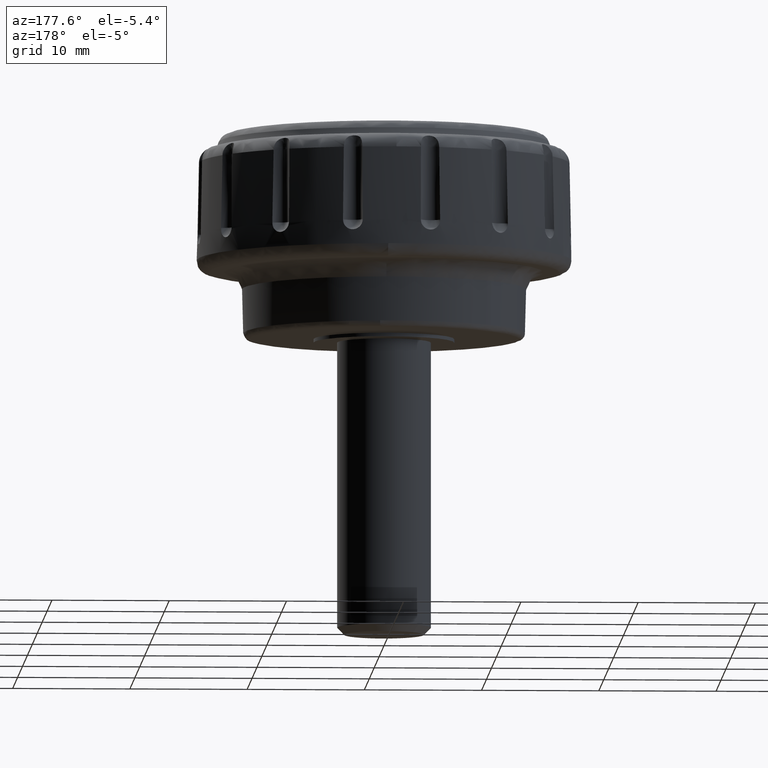
[diagram: clean part render]
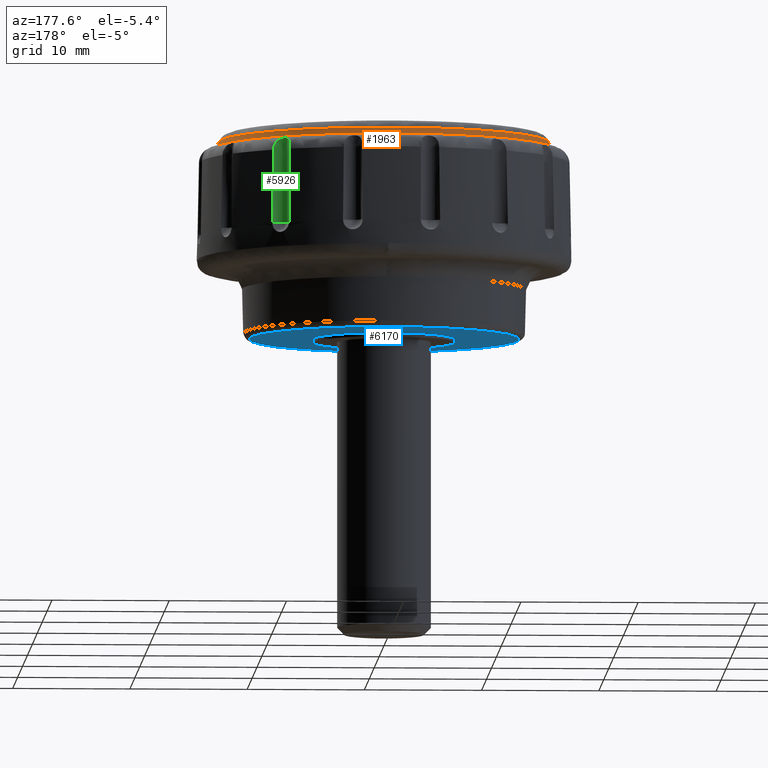
[diagram: same view with three faces highlighted in distinct colors, each labeled with its STEP entity id]
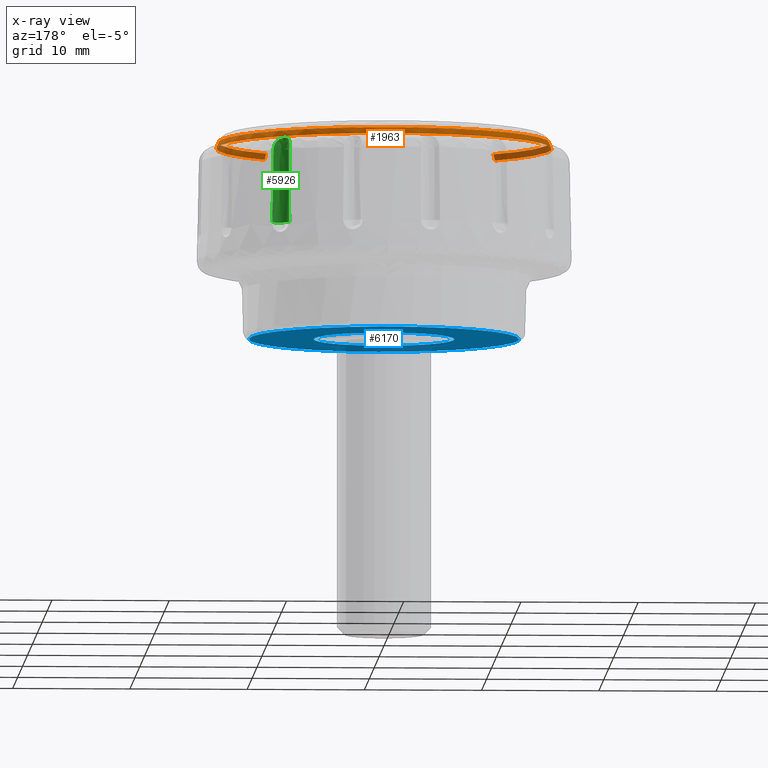
[diagram: x-ray of the same camera — body ghosted, the three highlighted faces saturated]
A machine part, auxiliary view with three faces highlighted in distinct colors.
The next image is the same camera in x-ray (body ghosted, the three faces saturated) — at least one of them is partly hidden behind the body in this view.
Their STEP definitions:

[orange] entity #1963 — the highlighted face is a freeform B-spline surface patch.
#1717=CARTESIAN_POINT('',(9.741862362445360,-10.468337684433539,16.599995669862640));
#1718=VERTEX_POINT('',#1717);
#1733=CARTESIAN_POINT('',(9.611777154227243,-10.328551693140261,17.124623670132269));
#1734=VERTEX_POINT('',#1733);
#1735=CARTESIAN_POINT('',(9.611777154227243,-10.328551693140261,17.124623670132269));
#1736=CARTESIAN_POINT('',(9.741862362445360,-10.468337684433539,16.599995669862640));
#1737=QUASI_UNIFORM_CURVE('',1,(#1735,#1736),.UNSPECIFIED.,.F.,.U.);
#1738=EDGE_CURVE('',#1734,#1718,#1737,.T.);
#1754=CARTESIAN_POINT('',(-9.761926331257637,-10.186758215078189,17.124623583571150));
#1755=VERTEX_POINT('',#1754);
#1768=CARTESIAN_POINT('',(-9.894043645202888,-10.324625177757120,16.599995583841419));
#1769=VERTEX_POINT('',#1768);
#1770=CARTESIAN_POINT('',(-9.761926331257637,-10.186758215078189,17.124623583571150));
#1771=CARTESIAN_POINT('',(-9.894043645202888,-10.324625177757120,16.599995583841419));
#1772=QUASI_UNIFORM_CURVE('',1,(#1770,#1771),.UNSPECIFIED.,.F.,.U.);
#1773=EDGE_CURVE('',#1755,#1769,#1772,.T.);
#1789=CARTESIAN_POINT('',(-9.758623294207041,-10.183311432274460,17.137739326991952));
#1790=CARTESIAN_POINT('',(-19.941934726481502,-0.424688138067420,17.137739326991955));
#1791=CARTESIAN_POINT('',(-10.183311432274460,9.758623294207041,17.137739326991952));
#1792=CARTESIAN_POINT('',(-0.424688138067420,19.941934726481502,17.137739326991955));
#1793=CARTESIAN_POINT('',(9.758623294207041,10.183311432274460,17.137739326991952));
#1794=CARTESIAN_POINT('',(19.941934726481502,0.424688138067420,17.137739326991955));
#1795=CARTESIAN_POINT('',(10.183311432274460,-9.758623294207041,17.137739326991952));
#1796=CARTESIAN_POINT('',(9.904023826182391,-10.050065292352238,17.137739326991952));
#1797=CARTESIAN_POINT('',(9.608525126397574,-10.325057153368133,17.137739326991959));
#1798=CARTESIAN_POINT('',(-9.897429047880150,-10.328157910679250,16.586552034385502));
#1799=CARTESIAN_POINT('',(-20.225586958559411,-0.430728862799102,16.586552034385495));
#1800=CARTESIAN_POINT('',(-10.328157910679250,9.897429047880150,16.586552034385502));
#1801=CARTESIAN_POINT('',(-0.430728862799102,20.225586958559411,16.586552034385495));
#1802=CARTESIAN_POINT('',(9.897429047880150,10.328157910679250,16.586552034385502));
#1803=CARTESIAN_POINT('',(20.225586958559411,0.430728862799102,16.586552034385495));
#1804=CARTESIAN_POINT('',(10.328157910679250,-9.897429047880150,16.586552034385502));
#1805=CARTESIAN_POINT('',(10.044897743552040,-10.193016490007041,16.586552034385498));
#1806=CARTESIAN_POINT('',(9.745195897637238,-10.471919809778075,16.586552034385502));
#1814=(BOUNDED_SURFACE()B_SPLINE_SURFACE(2,1,((#1789,#1798),(#1790,#1799),(#1791,#1800),(#1792,#1801),(#1793,#1802),(#1794,#1803),(#1795,#1804),(#1796,#1805),(#1797,#1806)),.UNSPECIFIED.,.F.,.F.,.U.)B_SPLINE_SURFACE_WITH_KNOTS((3,2,2,2,3),(2,2),(0.0,23.701121819972400,47.402243639944807,71.103365459917214,72.051410332716102),(0.0,1.0),.UNSPECIFIED.)GEOMETRIC_REPRESENTATION_ITEM()RATIONAL_B_SPLINE_SURFACE(((1.0,1.0),(0.707106781186548,0.707106781186548),(1.0,1.0),(0.707106781186548,0.707106781186548),(1.0,1.0),(0.707106781186548,0.707106781186548),(1.0,1.0),(0.988284271247462,0.988284271247462),(0.977505800795127,0.977505800795127)))REPRESENTATION_ITEM('')SURFACE());
#1815=CARTESIAN_POINT('',(14.299999315932620,0.0,16.599995626888099));
#1816=VERTEX_POINT('',#1815);
#1817=CARTESIAN_POINT('',(14.299999315932620,0.0,16.599995626888099));
#1818=CARTESIAN_POINT('',(14.300024979878250,-0.672891367650195,16.599995629650461));
#1819=CARTESIAN_POINT('',(14.204850064551589,-2.018668054558349,16.599995635175091));
#1820=CARTESIAN_POINT('',(13.811747138413519,-3.847287383103955,16.599995642682082));
#1821=CARTESIAN_POINT('',(13.275102940219661,-5.379495998442899,16.599995648971859));
#1822=CARTESIAN_POINT('',(12.589347787581520,-6.850165999294496,16.599995655009280));
#1823=CARTESIAN_POINT('',(11.512367018615320,-8.599602689756670,16.599995662191311));
#1824=CARTESIAN_POINT('',(10.436071650492330,-9.822497449720778,16.599995667211150));
#1825=CARTESIAN_POINT('',(9.741862362445360,-10.468337684433539,16.599995669862640));
#1826=B_SPLINE_CURVE_WITH_KNOTS('',3,(#1817,#1818,#1819,#1820,#1821,#1822,#1823,#1824,#1825),.UNSPECIFIED.,.F.,.U.,(4,1,1,1,1,1,4),(2.917856E-009,2.018674821056695,4.037352261559616,5.597242328558140,6.881847165355885,8.900522637050759,11.745019465611220),.UNSPECIFIED.);
#1827=EDGE_CURVE('',#1816,#1718,#1826,.T.);
#1828=ORIENTED_EDGE('',*,*,#1827,.F.);
#1829=CARTESIAN_POINT('',(0.000000536231302,14.299999315932610,16.599995626888099));
#1830=VERTEX_POINT('',#1829);
#1831=CARTESIAN_POINT('',(0.000000536231302,14.299999315932610,16.599995626888099));
#1832=CARTESIAN_POINT('',(0.584954762619021,14.300013572153430,16.599995626888109));
#1833=CARTESIAN_POINT('',(1.842610704569259,14.222734939778411,16.599995626888109));
#1834=CARTESIAN_POINT('',(3.828082670395826,13.834175987139400,16.599995626888131));
#1835=CARTESIAN_POINT('',(5.706645799565226,13.162003836970740,16.599995626888010));
#1836=CARTESIAN_POINT('',(7.550112127128871,12.198339958649440,16.599995626888340));
#1837=CARTESIAN_POINT('',(9.030960438203870,11.141778691582051,16.599995626887971));
#1838=CARTESIAN_POINT('',(10.357516783734020,9.901809103995477,16.599995626888230));
#1839=CARTESIAN_POINT('',(11.349061421890520,8.745179165024991,16.599995626887861));
#1840=CARTESIAN_POINT('',(12.210518943730341,7.489554326601818,16.599995626888120));
#1841=CARTESIAN_POINT('',(12.842459069166940,6.332988957526827,16.599995626888859));
#1842=CARTESIAN_POINT('',(13.450682810816099,4.937877876680468,16.599995626887441));
#1843=CARTESIAN_POINT('',(13.897911777430330,3.510962593316124,16.599995626888369));
#1844=CARTESIAN_POINT('',(14.224849160317310,1.754860821130128,16.599995626888109));
#1845=CARTESIAN_POINT('',(14.300026472663200,0.643451146336488,16.599995626888131));
#1846=CARTESIAN_POINT('',(14.299999315932620,0.0,16.599995626888099));
#1847=B_SPLINE_CURVE_WITH_KNOTS('',3,(#1831,#1832,#1833,#1834,#1835,#1836,#1837,#1838,#1839,#1840,#1841,#1842,#1843,#1844,#1845,#1846),.UNSPECIFIED.,.F.,.U.,(4,1,1,1,1,1,1,1,1,1,1,1,1,4),(0.000000010432423,1.754864903440488,3.772979358935100,6.054324827315970,7.721463875703522,10.002810197786660,11.494428465420491,13.161563603691709,14.565469117454359,16.057119769910781,17.110048299587049,19.128162886733200,20.532068400508759,22.462421333371442),.UNSPECIFIED.);
#1848=EDGE_CURVE('',#1830,#1816,#1847,.T.);
#1849=ORIENTED_EDGE('',*,*,#1848,.F.);
#1850=CARTESIAN_POINT('',(-14.299999315932620,0.0,16.599995626888099));
#1851=VERTEX_POINT('',#1850);
#1852=CARTESIAN_POINT('',(-14.299999315932620,0.0,16.599995626888099));
#1853=CARTESIAN_POINT('',(-14.300078891216280,0.818945049556642,16.599995626888120));
#1854=CARTESIAN_POINT('',(-14.206775199651560,1.901088837223415,16.599995626888099));
#1855=CARTESIAN_POINT('',(-13.853220165291379,3.650528035274693,16.599995626888070));
#1856=CARTESIAN_POINT('',(-13.418956626712159,5.051110256465529,16.599995626888170));
#1857=CARTESIAN_POINT('',(-12.752621185710900,6.517661122884575,16.599995626888060));
#1858=CARTESIAN_POINT('',(-12.023350624459059,7.786802865215898,16.599995626888120));
#1859=CARTESIAN_POINT('',(-11.151788568977970,9.000450575349611,16.599995626888109));
#1860=CARTESIAN_POINT('',(-10.128859941979661,10.129068600181650,16.599995626888070));
#1861=CARTESIAN_POINT('',(-9.106400535854515,11.050065144852381,16.599995626888148));
#1862=CARTESIAN_POINT('',(-8.053113892107652,11.841298886672989,16.599995626888020));
#1863=CARTESIAN_POINT('',(-6.781672826328383,12.624765379388460,16.599995626888301));
#1864=CARTESIAN_POINT('',(-5.401950174890777,13.272146758476230,16.599995626888191));
#1865=CARTESIAN_POINT('',(-3.960737443177575,13.762997856675600,16.599995626888081));
#1866=CARTESIAN_POINT('',(-2.222805142055559,14.175761443427300,16.599995626887960));
#1867=CARTESIAN_POINT('',(-0.877441959921076,14.300099481580551,16.599995626888461));
#1868=CARTESIAN_POINT('',(0.000000536231302,14.299999315932610,16.599995626888099));
#1869=B_SPLINE_CURVE_WITH_KNOTS('',3,(#1852,#1853,#1854,#1855,#1856,#1857,#1858,#1859,#1860,#1861,#1862,#1863,#1864,#1865,#1866,#1867,#1868),.UNSPECIFIED.,.F.,.U.,(4,1,1,1,1,1,1,1,1,1,1,1,1,1,4),(0.000000010386618,2.456817922226730,3.246517329437243,5.352373878433411,6.844021199160734,8.072434996498618,9.739573964549111,11.318948737760760,12.635102969578179,13.863516709828540,15.267422471708841,17.110048760033319,18.426210439211410,19.830116201066790,22.462421937829951),.UNSPECIFIED.);
#1870=EDGE_CURVE('',#1851,#1830,#1869,.T.);
#1871=ORIENTED_EDGE('',*,*,#1870,.F.);
#1872=CARTESIAN_POINT('',(-9.894043645202888,-10.324625177757120,16.599995583841419));
#1873=CARTESIAN_POINT('',(-10.501404152189080,-9.742693357660750,16.599995586267649));
#1874=CARTESIAN_POINT('',(-11.394595303953171,-8.720966171674958,16.599995590527680));
#1875=CARTESIAN_POINT('',(-12.362312354462000,-7.233011800153330,16.599995596731279));
#1876=CARTESIAN_POINT('',(-13.124560202705380,-5.765282870330510,16.599995602850779));
#1877=CARTESIAN_POINT('',(-13.707061568439110,-4.214078249398817,16.599995609318341));
#1878=CARTESIAN_POINT('',(-14.180360734201940,-2.192956471728512,16.599995617744941));
#1879=CARTESIAN_POINT('',(-14.300079351520530,-0.841149474517415,16.599995623381101));
#1880=CARTESIAN_POINT('',(-14.299999315932620,0.0,16.599995626888099));
#1881=B_SPLINE_CURVE_WITH_KNOTS('',3,(#1872,#1873,#1874,#1875,#1876,#1877,#1878,#1879,#1880),.UNSPECIFIED.,.F.,.U.,(4,1,1,1,1,1,4),(3.125441E-009,2.523434677625993,4.055521071681371,5.317245425797949,7.480181408480258,9.012267802537378,11.535702477038230),.UNSPECIFIED.);
#1882=EDGE_CURVE('',#1769,#1851,#1881,.T.);
#1883=ORIENTED_EDGE('',*,*,#1882,.F.);
#1884=ORIENTED_EDGE('',*,*,#1773,.F.);
#1885=CARTESIAN_POINT('',(-14.109048315932601,0.0,17.124623626887999));
#1886=VERTEX_POINT('',#1885);
#1887=CARTESIAN_POINT('',(-9.761926331257637,-10.186758215078189,17.124623583571150));
#1888=CARTESIAN_POINT('',(-10.361179080598360,-9.612600893623721,17.124623586012589));
#1889=CARTESIAN_POINT('',(-11.301193862681140,-8.537304680788880,17.124623590585092));
#1890=CARTESIAN_POINT('',(-12.450051527688670,-6.733844412870886,17.124623598253859));
#1891=CARTESIAN_POINT('',(-13.178842194206210,-5.138702268140159,17.124623605036870));
#1892=CARTESIAN_POINT('',(-13.669909920339190,-3.582325598788492,17.124623611654961));
#1893=CARTESIAN_POINT('',(-14.013079375439910,-1.956206436643523,17.124623618569640));
#1894=CARTESIAN_POINT('',(-14.109102540890261,-0.740995751926192,17.124623623737222));
#1895=CARTESIAN_POINT('',(-14.109048315932601,0.0,17.124623626887999));
#1896=B_SPLINE_CURVE_WITH_KNOTS('',3,(#1887,#1888,#1889,#1890,#1891,#1892,#1893,#1894,#1895),.UNSPECIFIED.,.F.,.U.,(4,1,1,1,1,1,4),(3.085441E-009,2.489738705985905,4.268127529443127,6.402182354453685,7.735972041120076,9.158684108801523,11.381663734931371),.UNSPECIFIED.);
#1897=EDGE_CURVE('',#1755,#1886,#1896,.T.);
#1898=ORIENTED_EDGE('',*,*,#1897,.T.);
#1899=CARTESIAN_POINT('',(-3.756556080860647,13.599762159377191,17.124623626989418));
#1900=VERTEX_POINT('',#1899);
#1901=CARTESIAN_POINT('',(-14.109048315932601,0.0,17.124623626887999));
#1902=CARTESIAN_POINT('',(-14.109078742099790,0.645468774198283,17.124623626887999));
#1903=CARTESIAN_POINT('',(-14.036729511180679,1.697334505490583,17.124623626888749));
#1904=CARTESIAN_POINT('',(-13.731829035943850,3.368683999530322,17.124623626891701));
#1905=CARTESIAN_POINT('',(-13.248522481472641,4.974936000266623,17.124623626896391));
#1906=CARTESIAN_POINT('',(-12.424996684123681,6.784963894706383,17.124623626904551));
#1907=CARTESIAN_POINT('',(-11.429836085815200,8.339911549483595,17.124623626914229));
#1908=CARTESIAN_POINT('',(-10.182143329204591,9.824386061163105,17.124623626926549));
#1909=CARTESIAN_POINT('',(-8.821641482991062,11.072276303179651,17.124623626939432));
#1910=CARTESIAN_POINT('',(-7.160518016461539,12.208474200395781,17.124623626956438));
#1911=CARTESIAN_POINT('',(-5.487633493474585,13.042842395880861,17.124623626971900));
#1912=CARTESIAN_POINT('',(-4.309597469814725,13.447013961211869,17.124623626984910));
#1913=CARTESIAN_POINT('',(-3.756556080860647,13.599762159377191,17.124623626989418));
#1914=B_SPLINE_CURVE_WITH_KNOTS('',3,(#1901,#1902,#1903,#1904,#1905,#1906,#1907,#1908,#1909,#1910,#1911,#1912,#1913),.UNSPECIFIED.,.F.,.U.,(4,1,1,1,1,1,1,1,1,1,4),(0.000000012227510,1.936403390582644,3.155627878339566,5.092043994148652,6.956742405589877,9.108313145628216,10.614389794207611,12.765966868446251,14.630661729148271,16.638797366268189,18.360042668770920),.UNSPECIFIED.);
#1915=EDGE_CURVE('',#1886,#1900,#1914,.T.);
#1916=ORIENTED_EDGE('',*,*,#1915,.T.);
#1917=CARTESIAN_POINT('',(13.362655745105810,4.528208897464552,17.124623626891310));
#1918=VERTEX_POINT('',#1917);
#1919=CARTESIAN_POINT('',(-3.756556080860647,13.599762159377191,17.124623626989418));
#1920=CARTESIAN_POINT('',(-3.113306442796355,13.777479208216610,17.124623626980991));
#1921=CARTESIAN_POINT('',(-2.129474283023069,13.975369545521310,17.124623626968340));
#1922=CARTESIAN_POINT('',(-0.522549269316588,14.123845826548720,17.124623626949958));
#1923=CARTESIAN_POINT('',(0.954238847054324,14.111475551791980,17.124623626934259));
#1924=CARTESIAN_POINT('',(2.749316315505110,13.877554686801560,17.124623626917149));
#1925=CARTESIAN_POINT('',(4.313153838349070,13.467063294116899,17.124623626904292));
#1926=CARTESIAN_POINT('',(5.765209647356253,12.900502762307219,17.124623626894039));
#1927=CARTESIAN_POINT('',(7.033333255738302,12.261777439931420,17.124623626886500));
#1928=CARTESIAN_POINT('',(8.437437354185358,11.355839574411769,17.124623626879959));
#1929=CARTESIAN_POINT('',(9.716544446540210,10.278170099263590,17.124623626876350));
#1930=CARTESIAN_POINT('',(10.854533352025699,9.055272216202280,17.124623626875749));
#1931=CARTESIAN_POINT('',(11.889952217939550,7.673451767715392,17.124623626877732));
#1932=CARTESIAN_POINT('',(12.747670752991480,6.140083340644271,17.124623626882201));
#1933=CARTESIAN_POINT('',(13.202022525891429,5.002236771637166,17.124623626889051));
#1934=CARTESIAN_POINT('',(13.362655745105810,4.528208897464552,17.124623626891310));
#1935=B_SPLINE_CURVE_WITH_KNOTS('',3,(#1919,#1920,#1921,#1922,#1923,#1924,#1925,#1926,#1927,#1928,#1929,#1930,#1931,#1932,#1933,#1934),.UNSPECIFIED.,.F.,.U.,(4,1,1,1,1,1,1,1,1,1,1,1,1,4),(0.000000012257804,2.002039984756806,3.003061315831214,4.838264293737829,6.423215553713236,8.425258709767896,9.676541068627614,11.094631544724971,12.679583423458141,14.681629864015351,16.099745862126191,17.684695504599009,19.853581747565379,21.355102955755029),.UNSPECIFIED.);
#1936=EDGE_CURVE('',#1900,#1918,#1935,.T.);
#1937=ORIENTED_EDGE('',*,*,#1936,.T.);
#1938=CARTESIAN_POINT('',(14.109048315932601,0.0,17.124623626887999));
#1939=VERTEX_POINT('',#1938);
#1940=CARTESIAN_POINT('',(13.362655745105810,4.528208897464552,17.124623626891310));
#1941=CARTESIAN_POINT('',(13.586149499264330,3.868781567341759,17.124623626890401));
#1942=CARTESIAN_POINT('',(13.971342335046220,2.376894582716293,17.124623626888450));
#1943=CARTESIAN_POINT('',(14.109123288591951,0.840330399230245,17.124623626888180));
#1944=CARTESIAN_POINT('',(14.109048315932601,0.0,17.124623626887999));
#1945=B_SPLINE_CURVE_WITH_KNOTS('',3,(#1940,#1941,#1942,#1943,#1944),.UNSPECIFIED.,.F.,.U.,(4,1,4),(8.370336E-010,2.088813890884503,4.609792789788524),.UNSPECIFIED.);
#1946=EDGE_CURVE('',#1918,#1939,#1945,.T.);
#1947=ORIENTED_EDGE('',*,*,#1946,.T.);
#1948=CARTESIAN_POINT('',(14.109048315932601,0.0,17.124623626887999));
#1949=CARTESIAN_POINT('',(14.109056778744421,-0.573370768556103,17.124623629288639));
#1950=CARTESIAN_POINT('',(14.028037094760240,-1.901188409928064,17.124623634848071));
#1951=CARTESIAN_POINT('',(13.657310100393520,-3.710346182109257,17.124623642422659));
#1952=CARTESIAN_POINT('',(13.097831009879281,-5.307660468505523,17.124623649110550));
#1953=CARTESIAN_POINT('',(12.382959030647401,-6.840838284385154,17.124623655529621));
#1954=CARTESIAN_POINT('',(11.302996389722740,-8.557839540482803,17.124623662718552));
#1955=CARTESIAN_POINT('',(10.230399943986750,-9.752973853042615,17.124623667722410));
#1956=CARTESIAN_POINT('',(9.611777154227243,-10.328551693140261,17.124623670132269));
#1957=B_SPLINE_CURVE_WITH_KNOTS('',3,(#1948,#1949,#1950,#1951,#1952,#1953,#1954,#1955,#1956),.UNSPECIFIED.,.F.,.U.,(4,1,1,1,1,1,4),(2.876504E-009,1.720118535051833,3.983440618586593,5.522501134206505,6.789952363185827,9.053271119385183,11.588185665857390),.UNSPECIFIED.);
#1958=EDGE_CURVE('',#1939,#1734,#1957,.T.);
#1959=ORIENTED_EDGE('',*,*,#1958,.T.);
#1960=ORIENTED_EDGE('',*,*,#1738,.T.);
#1961=EDGE_LOOP('',(#1828,#1849,#1871,#1883,#1884,#1898,#1916,#1937,#1947,#1959,#1960));
#1962=FACE_OUTER_BOUND('',#1961,.T.);
#1963=ADVANCED_FACE('',(#1962),#1814,.T.);

[blue] entity #6170 — the highlighted face is a freeform B-spline surface patch.
#1234=CARTESIAN_POINT('',(-3.874450965782978,-4.581332391605860,0.299992401054950));
#1235=VERTEX_POINT('',#1234);
#1236=CARTESIAN_POINT('',(-5.999997928657789,0.0,0.299992401042480));
#1237=VERTEX_POINT('',#1236);
#1238=CARTESIAN_POINT('',(-3.874450965782978,-4.581332391605860,0.299992401054950));
#1239=CARTESIAN_POINT('',(-4.237322000922757,-4.274605785413392,0.299992401054115));
#1240=CARTESIAN_POINT('',(-4.768339518189022,-3.704321002358034,0.299992401052560));
#1241=CARTESIAN_POINT('',(-5.343650493529828,-2.779647671792580,0.299992401050050));
#1242=CARTESIAN_POINT('',(-5.664688947853182,-2.028384698249467,0.299992401047991));
#1243=CARTESIAN_POINT('',(-5.926660386142345,-1.099542282669377,0.299992401045488));
#1244=CARTESIAN_POINT('',(-6.000094734739994,-0.447986544886537,0.299992401043694));
#1245=CARTESIAN_POINT('',(-5.999997928657789,0.0,0.299992401042480));
#1246=B_SPLINE_CURVE_WITH_KNOTS('',3,(#1238,#1239,#1240,#1241,#1242,#1243,#1244,#1245),.UNSPECIFIED.,.F.,.U.,(4,1,1,1,1,4),(8.706840E-009,1.425380300733793,2.321340183463770,3.258010712450622,3.868888128648971,5.212818021113001),.UNSPECIFIED.);
#1247=EDGE_CURVE('',#1235,#1237,#1246,.T.);
#1249=CARTESIAN_POINT('',(0.000000549201737,5.999997928657764,0.299992401042480));
#1250=VERTEX_POINT('',#1249);
#1251=CARTESIAN_POINT('',(-5.999997928657789,0.0,0.299992401042480));
#1252=CARTESIAN_POINT('',(-6.000090522980275,0.441793945512641,0.299992401042480));
#1253=CARTESIAN_POINT('',(-5.929180115032042,1.079887566553505,0.299992401042480));
#1254=CARTESIAN_POINT('',(-5.663743172198164,2.039060244048512,0.299992401042480));
#1255=CARTESIAN_POINT('',(-5.306878774861803,2.864631632644633,0.299992401042480));
#1256=CARTESIAN_POINT('',(-4.784786860813284,3.656412527738888,0.299992401042481));
#1257=CARTESIAN_POINT('',(-4.194327348079663,4.315956943010773,0.299992401042479));
#1258=CARTESIAN_POINT('',(-3.473118379260009,4.930461567075208,0.299992401042480));
#1259=CARTESIAN_POINT('',(-2.643371565416497,5.417483321227603,0.299992401042481));
#1260=CARTESIAN_POINT('',(-1.862229621634956,5.715978460257079,0.299992401042480));
#1261=CARTESIAN_POINT('',(-1.030806521590632,5.935140317649768,0.299992401042477));
#1262=CARTESIAN_POINT('',(-0.429521563680827,6.000080878612388,0.299992401042486));
#1263=CARTESIAN_POINT('',(0.000000549201737,5.999997928657764,0.299992401042480));
#1264=B_SPLINE_CURVE_WITH_KNOTS('',3,(#1251,#1252,#1253,#1254,#1255,#1256,#1257,#1258,#1259,#1260,#1261,#1262,#1263),.UNSPECIFIED.,.F.,.U.,(4,1,1,1,1,1,1,1,1,1,4),(0.000000025530463,1.325354340455750,1.914407555732946,2.982064694310203,4.012902830313594,4.749194757393224,5.632774193739441,6.847698170862319,7.620826941206047,8.136247934656856,9.424789801389153),.UNSPECIFIED.);
#1265=EDGE_CURVE('',#1237,#1250,#1264,.T.);
#1267=CARTESIAN_POINT('',(5.999997928657789,0.0,0.299992401042480));
#1268=VERTEX_POINT('',#1267);
#1269=CARTESIAN_POINT('',(0.000000549201737,5.999997928657764,0.299992401042480));
#1270=CARTESIAN_POINT('',(0.466340426098358,6.000097959621928,0.299992401042482));
#1271=CARTESIAN_POINT('',(1.141237334405861,5.920900381393420,0.299992401042478));
#1272=CARTESIAN_POINT('',(2.096369290166732,5.640709627840232,0.299992401042482));
#1273=CARTESIAN_POINT('',(2.951767114692814,5.261605749109291,0.299992401042474));
#1274=CARTESIAN_POINT('',(3.767149727231526,4.705833963215120,0.299992401042495));
#1275=CARTESIAN_POINT('',(4.513089775377700,3.991246488477651,0.299992401042458));
#1276=CARTESIAN_POINT('',(4.983210962898826,3.373369775801597,0.299992401042492));
#1277=CARTESIAN_POINT('',(5.411489033991540,2.628033630798058,0.299992401042489));
#1278=CARTESIAN_POINT('',(5.736775526112771,1.856209270678148,0.299992401042470));
#1279=CARTESIAN_POINT('',(5.955770890710198,0.908110672877980,0.299992401042488));
#1280=CARTESIAN_POINT('',(6.000006287053456,0.282249559559749,0.299992401042474));
#1281=CARTESIAN_POINT('',(5.999997928657789,0.0,0.299992401042480));
#1282=B_SPLINE_CURVE_WITH_KNOTS('',3,(#1269,#1270,#1271,#1272,#1273,#1274,#1275,#1276,#1277,#1278,#1279,#1280,#1281),.UNSPECIFIED.,.F.,.U.,(4,1,1,1,1,1,1,1,1,1,4),(0.000000025591271,1.398985163600869,2.024856401596520,2.982064498425696,4.196984592951315,4.970099314351203,6.074565432629037,6.516357346015515,7.547196534462350,8.578039935910423,9.424789182309782),.UNSPECIFIED.);
#1283=EDGE_CURVE('',#1250,#1268,#1282,.T.);
#1285=CARTESIAN_POINT('',(4.352244638296320,-4.130125919021335,0.299992401030417));
#1286=VERTEX_POINT('',#1285);
#1287=CARTESIAN_POINT('',(5.999997928657789,0.0,0.299992401042480));
#1288=CARTESIAN_POINT('',(6.000138010963235,-0.498252772134354,0.299992401041024));
#1289=CARTESIAN_POINT('',(5.903366452544518,-1.269254764726202,0.299992401038773));
#1290=CARTESIAN_POINT('',(5.532355260417891,-2.398951092450532,0.299992401035473));
#1291=CARTESIAN_POINT('',(5.050240513921284,-3.304270072592833,0.299992401032828));
#1292=CARTESIAN_POINT('',(4.580896137633466,-3.889198417256046,0.299992401031120));
#1293=CARTESIAN_POINT('',(4.352244638296320,-4.130125919021335,0.299992401030417));
#1294=B_SPLINE_CURVE_WITH_KNOTS('',3,(#1287,#1288,#1289,#1290,#1291,#1292,#1293),.UNSPECIFIED.,.F.,.U.,(4,1,1,1,4),(6.106778E-009,1.494712981001711,2.313237603813639,3.558840228875041,4.555314379960765),.UNSPECIFIED.);
#1295=EDGE_CURVE('',#1268,#1286,#1294,.T.);
#1390=CARTESIAN_POINT('',(-0.000000549201805,-5.999997928657765,0.299992401042480));
#1391=VERTEX_POINT('',#1390);
#1392=CARTESIAN_POINT('',(-0.000000549201805,-5.999997928657765,0.299992401042480));
#1393=CARTESIAN_POINT('',(-0.263247534902852,-6.000000723851031,0.299992401043327));
#1394=CARTESIAN_POINT('',(-0.877498948978552,-5.959536519562468,0.299992401045304));
#1395=CARTESIAN_POINT('',(-1.715763737985394,-5.772635076473099,0.299992401048003));
#1396=CARTESIAN_POINT('',(-2.484891308001358,-5.476543616170731,0.299992401050475));
#1397=CARTESIAN_POINT('',(-3.184582144835098,-5.107495624844054,0.299992401052739));
#1398=CARTESIAN_POINT('',(-3.631584671969769,-4.786756108070093,0.299992401054161));
#1399=CARTESIAN_POINT('',(-3.874450965782978,-4.581332391605860,0.299992401054950));
#1400=B_SPLINE_CURVE_WITH_KNOTS('',3,(#1392,#1393,#1394,#1395,#1396,#1397,#1398,#1399),.UNSPECIFIED.,.F.,.U.,(4,1,1,1,1,4),(4.672387E-009,0.789744825382470,1.842741171102131,2.566667190115561,3.257696873801233,4.211971528028595),.UNSPECIFIED.);
#1401=EDGE_CURVE('',#1391,#1235,#1400,.T.);
#1427=CARTESIAN_POINT('',(4.352244638296320,-4.130125919021335,0.299992401030417));
#1428=CARTESIAN_POINT('',(4.046783429736910,-4.452127486776180,0.299992401031263));
#1429=CARTESIAN_POINT('',(3.373710667828351,-5.019615616343514,0.299992401033128));
#1430=CARTESIAN_POINT('',(2.413034186846278,-5.522075801422147,0.299992401035794));
#1431=CARTESIAN_POINT('',(1.546181255012818,-5.812504857338514,0.299992401038192));
#1432=CARTESIAN_POINT('',(0.811577058454983,-5.963643929142179,0.299992401040230));
#1433=CARTESIAN_POINT('',(0.266297552922970,-6.000006873031827,0.299992401041744));
#1434=CARTESIAN_POINT('',(-0.000000549201805,-5.999997928657765,0.299992401042480));
#1435=B_SPLINE_CURVE_WITH_KNOTS('',3,(#1427,#1428,#1429,#1430,#1431,#1432,#1433,#1434),.UNSPECIFIED.,.F.,.U.,(4,1,1,1,1,4),(7.055316E-009,1.331498152420541,2.624951241433847,3.233633144344713,4.070580268351558,4.869475602683289),.UNSPECIFIED.);
#1436=EDGE_CURVE('',#1286,#1391,#1435,.T.);
#3321=CARTESIAN_POINT('',(0.802833341810995,11.484893727161481,0.299992401042480));
#3322=VERTEX_POINT('',#3321);
#3323=CARTESIAN_POINT('',(11.512919928657800,0.0,0.299992401042480));
#3324=VERTEX_POINT('',#3323);
#3325=CARTESIAN_POINT('',(0.802833341810995,11.484893727161481,0.299992401042480));
#3326=CARTESIAN_POINT('',(1.566030299662158,11.431659858836611,0.299992401042481));
#3327=CARTESIAN_POINT('',(2.702735645666121,11.236966477119839,0.299992401042479));
#3328=CARTESIAN_POINT('',(4.435567256836481,10.664710057164530,0.299992401042480));
#3329=CARTESIAN_POINT('',(5.915478250951697,9.937458668218707,0.299992401042480));
#3330=CARTESIAN_POINT('',(7.347089482309762,8.913339071589112,0.299992401042480));
#3331=CARTESIAN_POINT('',(8.391412318174989,7.917418575260790,0.299992401042479));
#3332=CARTESIAN_POINT('',(9.172924212466885,6.985281214939771,0.299992401042480));
#3333=CARTESIAN_POINT('',(9.876494722495703,5.965502454233878,0.299992401042480));
#3334=CARTESIAN_POINT('',(10.576490666636399,4.651904691217504,0.299992401042480));
#3335=CARTESIAN_POINT('',(11.077503460231700,3.248941924907527,0.299992401042481));
#3336=CARTESIAN_POINT('',(11.426589636827300,1.665074554485617,0.299992401042477));
#3337=CARTESIAN_POINT('',(11.512974776521860,0.652540341158690,0.299992401042485));
#3338=CARTESIAN_POINT('',(11.512919928657800,0.0,0.299992401042480));
#3339=B_SPLINE_CURVE_WITH_KNOTS('',3,(#3325,#3326,#3327,#3328,#3329,#3330,#3331,#3332,#3333,#3334,#3335,#3336,#3337,#3338),.UNSPECIFIED.,.F.,.U.,(4,1,1,1,1,1,1,1,1,1,1,4),(0.000000016936315,2.295124611658020,3.442696664642050,5.467818293994837,7.222916151802878,8.707988447903317,9.788058972635977,10.868122313915229,12.420712207795320,14.243319198055660,15.323380584723980,17.280991658916221),.UNSPECIFIED.);
#3340=EDGE_CURVE('',#3322,#3324,#3339,.T.);
#3358=CARTESIAN_POINT('',(-11.512010921754420,0.144671811202584,0.299992401042481));
#3359=VERTEX_POINT('',#3358);
#3371=CARTESIAN_POINT('',(-11.512919928657800,0.0,0.299992401042480));
#3372=VERTEX_POINT('',#3371);
#3373=CARTESIAN_POINT('',(-11.512919928657800,0.0,0.299992401042480));
#3374=CARTESIAN_POINT('',(-11.512010921754420,0.144671811202584,0.299992401042481));
#3375=QUASI_UNIFORM_CURVE('',1,(#3373,#3374),.UNSPECIFIED.,.F.,.U.);
#3376=EDGE_CURVE('',#3372,#3359,#3375,.T.);
#3378=CARTESIAN_POINT('',(-0.000000394016640,-11.512919928657791,0.299992401042480));
#3379=VERTEX_POINT('',#3378);
#3380=CARTESIAN_POINT('',(-0.000000394016640,-11.512919928657791,0.299992401042480));
#3381=CARTESIAN_POINT('',(-0.659333677761488,-11.512984516559349,0.299992401042481));
#3382=CARTESIAN_POINT('',(-1.671848093506493,-11.425680712292021,0.299992401042479));
#3383=CARTESIAN_POINT('',(-3.167853422655921,-11.094566567979591,0.299992401042481));
#3384=CARTESIAN_POINT('',(-4.417633947854529,-10.664623739993621,0.299992401042480));
#3385=CARTESIAN_POINT('',(-5.560573259824685,-10.102415712581410,0.299992401042481));
#3386=CARTESIAN_POINT('',(-6.641944821229847,-9.431522476947583,0.299992401042478));
#3387=CARTESIAN_POINT('',(-7.553625375196401,-8.720035452539465,0.299992401042485));
#3388=CARTESIAN_POINT('',(-8.515155132223489,-7.781798874475705,0.299992401042476));
#3389=CARTESIAN_POINT('',(-9.491874080118206,-6.599225876357937,0.299992401042485));
#3390=CARTESIAN_POINT('',(-10.358182689878429,-5.133498169324412,0.299992401042472));
#3391=CARTESIAN_POINT('',(-10.984152116905340,-3.554067185753791,0.299992401042481));
#3392=CARTESIAN_POINT('',(-11.402015149349801,-1.907316881805528,0.299992401042480));
#3393=CARTESIAN_POINT('',(-11.513003687342710,-0.706430100116109,0.299992401042480));
#3394=CARTESIAN_POINT('',(-11.512919928657800,0.0,0.299992401042480));
#3395=B_SPLINE_CURVE_WITH_KNOTS('',3,(#3380,#3381,#3382,#3383,#3384,#3385,#3386,#3387,#3388,#3389,#3390,#3391,#3392,#3393,#3394),.UNSPECIFIED.,.F.,.U.,(4,1,1,1,1,1,1,1,1,1,1,1,4),(0.000000016265631,1.977986525070268,3.037622048909629,4.591763049197857,5.933975462512240,6.852331990152669,8.406467246536188,9.395452741168871,10.878935216263271,12.998220272416670,14.481716566513290,15.965207302778390,18.084480481801400),.UNSPECIFIED.);
#3396=EDGE_CURVE('',#3379,#3372,#3395,.T.);
#3398=CARTESIAN_POINT('',(11.512919928657800,0.0,0.299992401042480));
#3399=CARTESIAN_POINT('',(11.512927204583850,-0.470944856959185,0.299992401042480));
#3400=CARTESIAN_POINT('',(11.447838283209100,-1.530583733024278,0.299992401042481));
#3401=CARTESIAN_POINT('',(11.171814290050779,-2.896355910825927,0.299992401042479));
#3402=CARTESIAN_POINT('',(10.735586446799889,-4.216754848151862,0.299992401042480));
#3403=CARTESIAN_POINT('',(10.202507331545680,-5.399743843927777,0.299992401042480));
#3404=CARTESIAN_POINT('',(9.340373076680505,-6.808648307353336,0.299992401042480));
#3405=CARTESIAN_POINT('',(8.271058163975837,-8.071609343799535,0.299992401042479));
#3406=CARTESIAN_POINT('',(7.187097555520263,-9.018212411773119,0.299992401042483));
#3407=CARTESIAN_POINT('',(6.228023991860406,-9.702516304694033,0.299992401042475));
#3408=CARTESIAN_POINT('',(5.188879918046422,-10.308158863945019,0.299992401042494));
#3409=CARTESIAN_POINT('',(3.781046035867615,-10.916806552255251,0.299992401042474));
#3410=CARTESIAN_POINT('',(2.025056608335489,-11.391158315143439,0.299992401042482));
#3411=CARTESIAN_POINT('',(0.706429082613816,-11.513000472576820,0.299992401042489));
#3412=CARTESIAN_POINT('',(-0.000000394016640,-11.512919928657791,0.299992401042480));
#3413=B_SPLINE_CURVE_WITH_KNOTS('',3,(#3398,#3399,#3400,#3401,#3402,#3403,#3404,#3405,#3406,#3407,#3408,#3409,#3410,#3411,#3412),.UNSPECIFIED.,.F.,.U.,(4,1,1,1,1,1,1,1,1,1,1,1,4),(0.000000016208894,1.412838972695912,3.178910205691329,4.167907809510409,5.580762195252847,7.064256626342864,9.112872616264246,10.525722483262751,11.373442573531920,12.645007781989660,14.128503135107371,15.965207694962780,18.084480925950739),.UNSPECIFIED.);
#3414=EDGE_CURVE('',#3324,#3379,#3413,.T.);
#3442=CARTESIAN_POINT('',(-11.512010921754420,0.144671811202584,0.299992401042481));
#3443=CARTESIAN_POINT('',(-11.505591142834261,0.657143196710359,0.299992401042481));
#3444=CARTESIAN_POINT('',(-11.435765428672910,1.534917698518022,0.299992401042480));
#3445=CARTESIAN_POINT('',(-11.186359668260160,2.805626007995802,0.299992401042481));
#3446=CARTESIAN_POINT('',(-10.851761257990519,3.904541483233116,0.299992401042479));
#3447=CARTESIAN_POINT('',(-10.350696506593099,5.098629284333758,0.299992401042482));
#3448=CARTESIAN_POINT('',(-9.715825603683575,6.228898245109155,0.299992401042480));
#3449=CARTESIAN_POINT('',(-8.834327444786744,7.431290075316037,0.299992401042480));
#3450=CARTESIAN_POINT('',(-7.856757533848830,8.460239139601066,0.299992401042481));
#3451=CARTESIAN_POINT('',(-6.792834444221376,9.321662554730489,0.299992401042479));
#3452=CARTESIAN_POINT('',(-5.706607227959458,10.026658015288280,0.299992401042479));
#3453=CARTESIAN_POINT('',(-4.329155146197341,10.716762168966479,0.299992401042487));
#3454=CARTESIAN_POINT('',(-2.673368738861969,11.250406029948479,0.299992401042474));
#3455=CARTESIAN_POINT('',(-0.882757045957766,11.520253696314780,0.299992401042492));
#3456=CARTESIAN_POINT('',(0.242881912635900,11.524065779754800,0.299992401042475));
#3457=CARTESIAN_POINT('',(0.802833341810995,11.484893727161481,0.299992401042480));
#3458=B_SPLINE_CURVE_WITH_KNOTS('',3,(#3442,#3443,#3444,#3445,#3446,#3447,#3448,#3449,#3450,#3451,#3452,#3453,#3454,#3455,#3456,#3457),.UNSPECIFIED.,.F.,.U.,(4,1,1,1,1,1,1,1,1,1,1,1,1,4),(0.000000015164915,1.537533771082543,2.635771308176107,3.880446658516339,4.978687695229782,6.516225331649416,7.760903538092851,9.444853675399774,10.762740187565090,11.860987340550080,13.325310479755220,15.375362084766561,17.059335545770470,18.743293731745212),.UNSPECIFIED.);
#3459=EDGE_CURVE('',#3359,#3322,#3458,.T.);
#6150=CARTESIAN_POINT('',(-12.663061233352501,-12.662992032140229,0.299992401042480));
#6151=CARTESIAN_POINT('',(12.663061233352501,-12.662992032140229,0.299992401042480));
#6152=CARTESIAN_POINT('',(-12.663061233352501,12.661606622892791,0.299992401042480));
#6153=CARTESIAN_POINT('',(12.663061233352501,12.661606622892791,0.299992401042480));
#6154=B_SPLINE_SURFACE_WITH_KNOTS('',1,1,((#6150,#6152),(#6151,#6153)),.UNSPECIFIED.,.F.,.F.,.U.,(2,2),(2,2),(0.0,25.326122466704991),(0.0,25.324598655033029),.UNSPECIFIED.);
#6155=ORIENTED_EDGE('',*,*,#3376,.T.);
#6156=ORIENTED_EDGE('',*,*,#3459,.T.);
#6157=ORIENTED_EDGE('',*,*,#3340,.T.);
#6158=ORIENTED_EDGE('',*,*,#3414,.T.);
#6159=ORIENTED_EDGE('',*,*,#3396,.T.);
#6160=EDGE_LOOP('',(#6155,#6156,#6157,#6158,#6159));
#6161=FACE_OUTER_BOUND('',#6160,.T.);
#6162=ORIENTED_EDGE('',*,*,#1265,.F.);
#6163=ORIENTED_EDGE('',*,*,#1247,.F.);
#6164=ORIENTED_EDGE('',*,*,#1401,.F.);
#6165=ORIENTED_EDGE('',*,*,#1436,.F.);
#6166=ORIENTED_EDGE('',*,*,#1295,.F.);
#6167=ORIENTED_EDGE('',*,*,#1283,.F.);
#6168=EDGE_LOOP('',(#6162,#6163,#6164,#6165,#6166,#6167));
#6169=FACE_BOUND('',#6168,.T.);
#6170=ADVANCED_FACE('',(#6161,#6169),#6154,.F.);

[green] entity #5926 — the highlighted face is a freeform B-spline surface patch.
#2321=CARTESIAN_POINT('',(8.633097309670880,13.246215161043940,15.326313504426750));
#2322=VERTEX_POINT('',#2321);
#2331=CARTESIAN_POINT('',(8.663754047178010,13.376644594904880,9.099991000000141));
#2332=VERTEX_POINT('',#2331);
#2333=CARTESIAN_POINT('',(8.663754047178010,13.376644594904880,9.099991000000141));
#2334=CARTESIAN_POINT('',(8.633097309670880,13.246215161043940,15.326313504426750));
#2335=QUASI_UNIFORM_CURVE('',1,(#2333,#2334),.UNSPECIFIED.,.F.,.U.);
#2336=EDGE_CURVE('',#2332,#2322,#2335,.T.);
#2338=CARTESIAN_POINT('',(10.044697772485900,12.373330249686539,9.099991000000120));
#2339=VERTEX_POINT('',#2338);
#2390=CARTESIAN_POINT('',(9.930125462377559,12.303869048082300,15.326313504426750));
#2391=VERTEX_POINT('',#2390);
#2392=CARTESIAN_POINT('',(9.930125462377559,12.303869048082300,15.326313504426750));
#2393=CARTESIAN_POINT('',(10.044697772485900,12.373330249686539,9.099991000000120));
#2394=QUASI_UNIFORM_CURVE('',1,(#2392,#2393),.UNSPECIFIED.,.F.,.U.);
#2395=EDGE_CURVE('',#2391,#2339,#2394,.T.);
#4165=CARTESIAN_POINT('',(8.633097309670884,13.246215161043921,15.326313504426750));
#4166=CARTESIAN_POINT('',(8.632869407842778,13.244769417879411,15.392275721103600));
#4167=CARTESIAN_POINT('',(8.631752207508196,13.237966324435041,15.457215844345260));
#4168=CARTESIAN_POINT('',(8.628497954117613,13.213731275016080,15.585084659193919));
#4169=CARTESIAN_POINT('',(8.626342107818141,13.196245588611349,15.648165348789490));
#4170=CARTESIAN_POINT('',(8.622865787968788,13.149558695796211,15.771480120165689));
#4171=CARTESIAN_POINT('',(8.621595889436486,13.120945756023810,15.830187260820820));
#4172=CARTESIAN_POINT('',(8.622689293670774,13.069788787763381,15.913622888200090));
#4173=CARTESIAN_POINT('',(8.623562555901621,13.051356377912850,15.940659858825740));
#4174=CARTESIAN_POINT('',(8.626870560663035,13.011585776683040,15.993099398981199));
#4175=CARTESIAN_POINT('',(8.629311897009570,12.990317839533081,16.018370617664171));
#4176=CARTESIAN_POINT('',(8.639638295419992,12.923741976473980,16.089836993467149));
#4177=CARTESIAN_POINT('',(8.650550073480916,12.875065147766810,16.132419336099559));
#4178=CARTESIAN_POINT('',(8.684979213370431,12.771119203228100,16.206696576304662));
#4179=CARTESIAN_POINT('',(8.707791481240580,12.718049611301300,16.236916716465402));
#4180=CARTESIAN_POINT('',(8.752449803095027,12.638599029799121,16.273372733730461));
#4181=CARTESIAN_POINT('',(8.769252476564446,12.611913926345389,16.284103694936650));
#4182=CARTESIAN_POINT('',(8.805822172077779,12.560252441221470,16.302198413553530));
#4183=CARTESIAN_POINT('',(8.825564171453630,12.535246194560511,16.309608231862100));
#4184=CARTESIAN_POINT('',(8.868039361480063,12.487032018841100,16.321470491403620));
#4185=CARTESIAN_POINT('',(8.890771205249639,12.463823060180180,16.325923424713800));
#4186=CARTESIAN_POINT('',(8.939415666855824,12.419383921390789,16.331938362176238));
#4187=CARTESIAN_POINT('',(8.964961684037526,12.398509629892629,16.333442616285961));
#4188=CARTESIAN_POINT('',(9.017807111888486,12.359923041681620,16.333568197326350));
#4189=CARTESIAN_POINT('',(9.045205506754526,12.342119770098730,16.332201752975379));
#4190=CARTESIAN_POINT('',(9.101953884636099,12.309497618880281,16.326516220408561));
#4191=CARTESIAN_POINT('',(9.131484643840372,12.294624281798360,16.322144624058801));
#4192=CARTESIAN_POINT('',(9.190687267688814,12.268697771225050,16.310487336771370));
#4193=CARTESIAN_POINT('',(9.220536097339874,12.257521449627401,16.303198625291220));
#4194=CARTESIAN_POINT('',(9.280591609363924,12.238515195717650,16.285489112634892));
#4195=CARTESIAN_POINT('',(9.310939132016669,12.230659112383130,16.275010779707209));
#4196=CARTESIAN_POINT('',(9.401340541279815,12.212094218668920,16.238602871068760));
#4197=CARTESIAN_POINT('',(9.459136263347652,12.206613317783059,16.208460699983139));
#4198=CARTESIAN_POINT('',(9.541214102535303,12.205859583356879,16.153291029476751));
#4199=CARTESIAN_POINT('',(9.567694675319515,12.206879111451141,16.133261844905380));
#4200=CARTESIAN_POINT('',(9.617602652932456,12.210802261732230,16.090859748792749));
#4201=CARTESIAN_POINT('',(9.641221176825455,12.213702364067700,16.068364298256721));
#4202=CARTESIAN_POINT('',(9.685843662157458,12.220801887504990,16.020775310077290));
#4203=CARTESIAN_POINT('',(9.706948463613776,12.225027981731291,15.995538181463880));
#4204=CARTESIAN_POINT('',(9.745997414697015,12.234132214508509,15.943208481862399));
#4205=CARTESIAN_POINT('',(9.763933209439903,12.238996140102220,15.916170960119119));
#4206=CARTESIAN_POINT('',(9.796896725522243,12.248871965571160,15.860425718516620));
#4207=CARTESIAN_POINT('',(9.811923958402684,12.253885142339580,15.831717933635810));
#4208=CARTESIAN_POINT('',(9.839252870283067,12.263673342852821,15.772672126267009));
#4209=CARTESIAN_POINT('',(9.851569198743851,12.268457237872690,15.742256066367601));
#4210=CARTESIAN_POINT('',(9.884098736388621,12.281743061145541,15.650174610634011));
#4211=CARTESIAN_POINT('',(9.900195503386323,12.289242050736981,15.587218446226860));
#4212=CARTESIAN_POINT('',(9.922588003109752,12.299984151549220,15.458347906808450));
#4213=CARTESIAN_POINT('',(9.928819214873855,12.303204682022679,15.392361151363779));
#4214=CARTESIAN_POINT('',(9.930125462377559,12.303869048082300,15.326313504426750));
#4215=B_SPLINE_CURVE_WITH_KNOTS('',3,(#4165,#4166,#4167,#4168,#4169,#4170,#4171,#4172,#4173,#4174,#4175,#4176,#4177,#4178,#4179,#4180,#4181,#4182,#4183,#4184,#4185,#4186,#4187,#4188,#4189,#4190,#4191,#4192,#4193,#4194,#4195,#4196,#4197,#4198,#4199,#4200,#4201,#4202,#4203,#4204,#4205,#4206,#4207,#4208,#4209,#4210,#4211,#4212,#4213,#4214),.UNSPECIFIED.,.F.,.U.,(4,2,2,2,2,2,2,2,2,2,2,2,2,2,2,2,2,2,2,2,2,2,2,2,4),(0.0,0.062499999999999,0.124999999999998,0.187499999999997,0.218749999999996,0.249999999999995,0.312499999999993,0.374999999999991,0.406249999999991,0.437499999999991,0.468749999999991,0.499999999999991,0.531249999999991,0.562499999999991,0.593749999999991,0.624999999999991,0.687499999999990,0.718749999999990,0.749999999999991,0.781249999999991,0.812499999999991,0.843749999999992,0.874999999999992,0.937499999999996,1.0),.UNSPECIFIED.);
#4216=EDGE_CURVE('',#2322,#2391,#4215,.T.);
#5462=CARTESIAN_POINT('',(8.663754047178010,13.376644594904880,9.099991000000141));
#5463=CARTESIAN_POINT('',(8.628473313271519,13.265092200902471,9.099991000000122));
#5464=CARTESIAN_POINT('',(8.605677989102992,13.057715304834430,9.099991000000220));
#5465=CARTESIAN_POINT('',(8.667926180468525,12.792978529513221,9.099991000000067));
#5466=CARTESIAN_POINT('',(8.785702143198225,12.569067764089020,9.099991000000182));
#5467=CARTESIAN_POINT('',(8.936394009970458,12.409634897551371,9.099991000000166));
#5468=CARTESIAN_POINT('',(9.135415190872731,12.284880218525130,9.099991000000113));
#5469=CARTESIAN_POINT('',(9.324916193208637,12.218716914331781,9.099991000000099));
#5470=CARTESIAN_POINT('',(9.524095134359504,12.200337956867720,9.099991000000147));
#5471=CARTESIAN_POINT('',(9.711009566406730,12.219618889769309,9.099991000000129));
#5472=CARTESIAN_POINT('',(9.885007764541191,12.274892634376959,9.099991000000120));
#5473=CARTESIAN_POINT('',(9.997083674854979,12.339366548235629,9.099991000000124));
#5474=CARTESIAN_POINT('',(10.044697772485900,12.373330249686539,9.099991000000120));
#5475=B_SPLINE_CURVE_WITH_KNOTS('',3,(#5462,#5463,#5464,#5465,#5466,#5467,#5468,#5469,#5470,#5471,#5472,#5473,#5474),.UNSPECIFIED.,.F.,.U.,(4,1,1,1,1,1,1,1,1,1,4),(0.000000141598200,0.350956559790522,0.614182248297583,0.807219052766118,1.105537872808367,1.263453953675082,1.509125019001863,1.702154501616984,1.860086772456480,2.070679232452498,2.246141144515202),.UNSPECIFIED.);
#5476=EDGE_CURVE('',#2332,#2339,#5475,.T.);
#5902=CARTESIAN_POINT('',(8.666147884756631,13.384124847419979,16.514345387052771));
#5903=CARTESIAN_POINT('',(8.666147884756631,13.384124847419979,8.914632140323803));
#5904=CARTESIAN_POINT('',(8.460400253379866,12.750739301204820,16.514345387052774));
#5905=CARTESIAN_POINT('',(8.460400253379866,12.750739301204820,8.914632140323803));
#5906=CARTESIAN_POINT('',(9.005955077855377,12.368797850897430,16.514345387052771));
#5907=CARTESIAN_POINT('',(9.005955077855377,12.368797850897430,8.914632140323803));
#5908=CARTESIAN_POINT('',(9.551509902330889,11.986856400590028,16.514345387052774));
#5909=CARTESIAN_POINT('',(9.551509902330889,11.986856400590028,8.914632140323803));
#5910=CARTESIAN_POINT('',(10.076267121810890,12.396904200943890,16.514345387052771));
#5911=CARTESIAN_POINT('',(10.076267121810890,12.396904200943890,8.914632140323803));
#5919=(BOUNDED_SURFACE()B_SPLINE_SURFACE(1,2,((#5902,#5904,#5906,#5908,#5910),(#5903,#5905,#5907,#5909,#5911)),.UNSPECIFIED.,.F.,.F.,.U.)B_SPLINE_SURFACE_WITH_KNOTS((2,2),(3,2,3),(0.0,7.599713246728971),(0.0,1.0,2.0),.UNSPECIFIED.)GEOMETRIC_REPRESENTATION_ITEM()RATIONAL_B_SPLINE_SURFACE(((1.0,0.803856860617218,1.0,0.803856860617218,1.0),(1.0,0.803856860617218,1.0,0.803856860617218,1.0)))REPRESENTATION_ITEM('')SURFACE());
#5920=ORIENTED_EDGE('',*,*,#2395,.T.);
#5921=ORIENTED_EDGE('',*,*,#5476,.F.);
#5922=ORIENTED_EDGE('',*,*,#2336,.T.);
#5923=ORIENTED_EDGE('',*,*,#4216,.T.);
#5924=EDGE_LOOP('',(#5920,#5921,#5922,#5923));
#5925=FACE_OUTER_BOUND('',#5924,.T.);
#5926=ADVANCED_FACE('',(#5925),#5919,.F.);